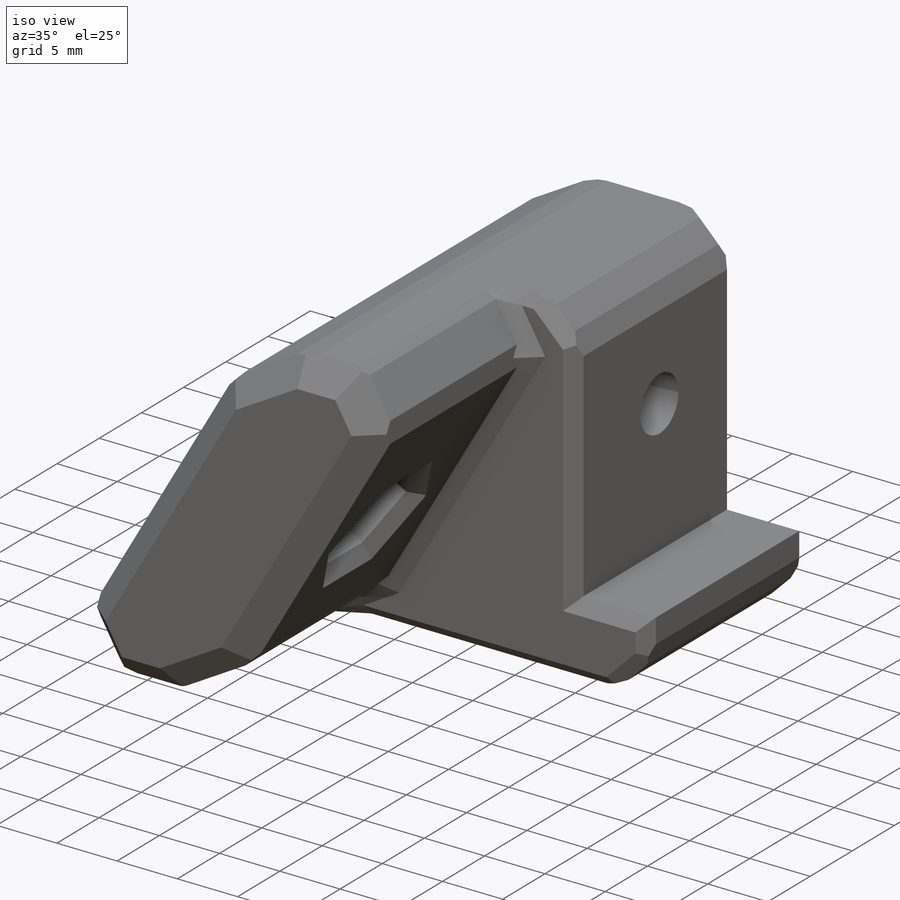
[diagram: iso view]
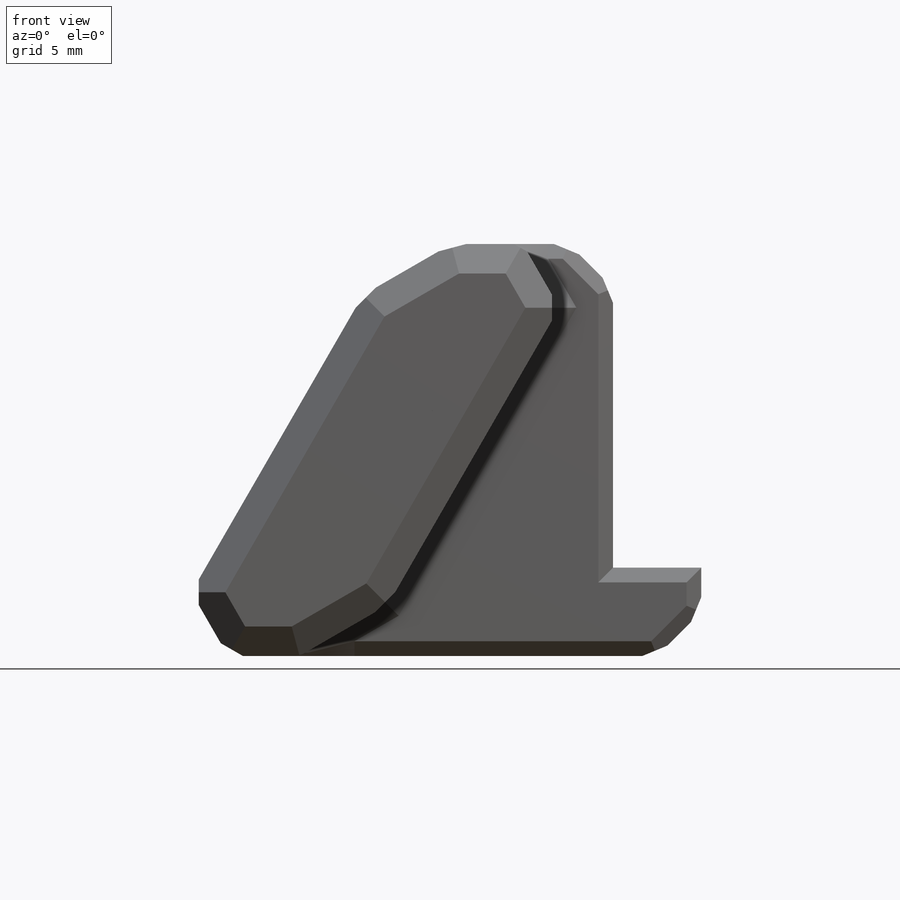
[diagram: front view]
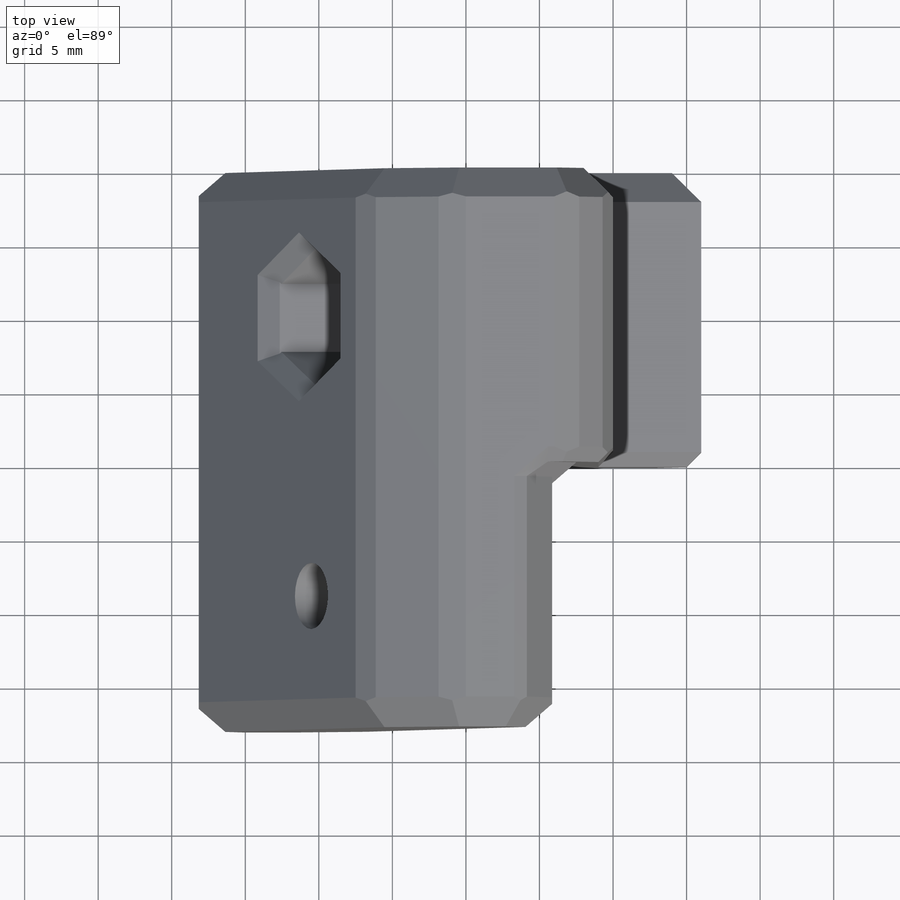
[diagram: top view]
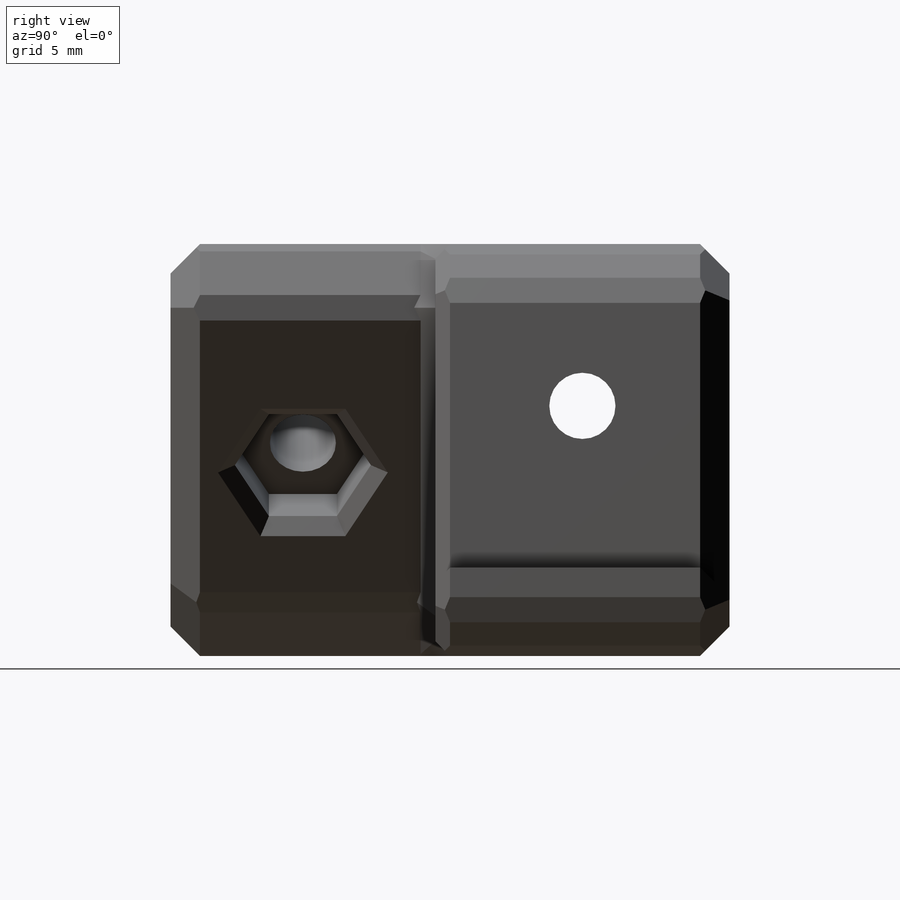
[diagram: right view]
SOLIDWORKS PART (.sldprt)
format: sldprt  version: not decoded by parser v0  size: 461,312 bytes
history: native  units: mm
features: sketch x14, fillet x7, chamfer x7, cut_extrude x4, plane x3, extrude x2, material x1 (+12 scaffold rows collapsed; 1 parser-record rows omitted)
feature tree (51):
  scaffold x12  (default folders/planes/origin — collapsed)
  material  "ABS"
  sketch  "Sketch1"  dims[c1.D1=6.0mm c1.D2=6.0mm c1.D3=22.0mm c1.D4=~50.656257mm c2.D4=60.0deg c2.D5=15.0mm]
  sketch  "Sketch2"  dims[D1=12.0mm D2=4.0mm D3=~9.361367mm]
  sketch  "Sketch3"  dims[D1=20.0mm D2=18.0mm]
  plane  "Plane1"
  plane  "Plane2"
  sketch  "Sketch7"  dims[D1=11.0mm]
  sketch  "Sketch6"  dims[D1=15.0mm]
  sketch  "Sketch4"  dims[D1=0.0mm]
  extrude  "Boss-Extrude1"  [1 undecoded]
  sketch  "Sketch5"  dims[D1=0.0mm]
  extrude  "Boss-Extrude2"  [1 undecoded]
  sketch  "Sketch8"  dims[c1.D1=4.5mm c1.D2=8.0mm c2.D1=~16.672868mm]
  sketch  "Sketch10"  dims[c1.D1=4.5mm c1.D2=8.0mm c2.D1=~30.439098mm]
  sketch  "Sketch11"
  cut_extrude  "Cut-Extrude1"  [1 undecoded]
  sketch  "Sketch12"
  cut_extrude  "Cut-Extrude2"  [1 undecoded]
  sketch  "Sketch13"
  sketch  "Sketch14"
  cut_extrude  "Cut-Extrude3"  Depth=4mm
  sketch  "3DSketch1"  dims[c1.D1=~14.579411mm c2.D1=~21.516132mm c3.D1=~7.584184mm c4.D1=~18.277992mm c5.D1=~5.108247mm c6.D1=~2.753754mm c7.D1=~4.62095mm c8.D1=6.0mm]
  cut_extrude  "Cut-Extrude4"  [1 undecoded]
  parser-record x1  (decoder bookkeeping rows leaked as tree rows — omitted from the tree; the rows remain in map.json)
  fillet  "Fillet1"  Radius=5mm
  fillet  "Fillet11"  Radius=5mm
  fillet  "Fillet2"  Radius=1mm
  fillet  "Fillet5"  Radius=3.5mm
  fillet  "Fillet8"  Radius=2.5mm
  fillet  "Fillet9"  Radius=2.5mm
  fillet  "Fillet10"  Radius=1mm
  chamfer  "Chamfer8"  Distance=4mm
  chamfer  "Chamfer9"  Distance=5mm
  chamfer  "Chamfer10"  Distance=3mm
  chamfer  "Chamfer12"  Distance=2mm Angle=45deg
  chamfer  "Chamfer13"  Distance=1mm Angle=45deg
  chamfer  "Chamfer14"  Distance=1mm
  chamfer  "Chamfer16"  Distance=1mm
  plane  "Plane3"
decode coverage: 25 of 34 modeling features carry decoded parameters
note: ~ marks probable driven/reference dimensions
note: 5 parameter values undecoded
summary: no parameter record found for 5 features
note: suppression state not decoded; provenance and decode notes live in map.json
